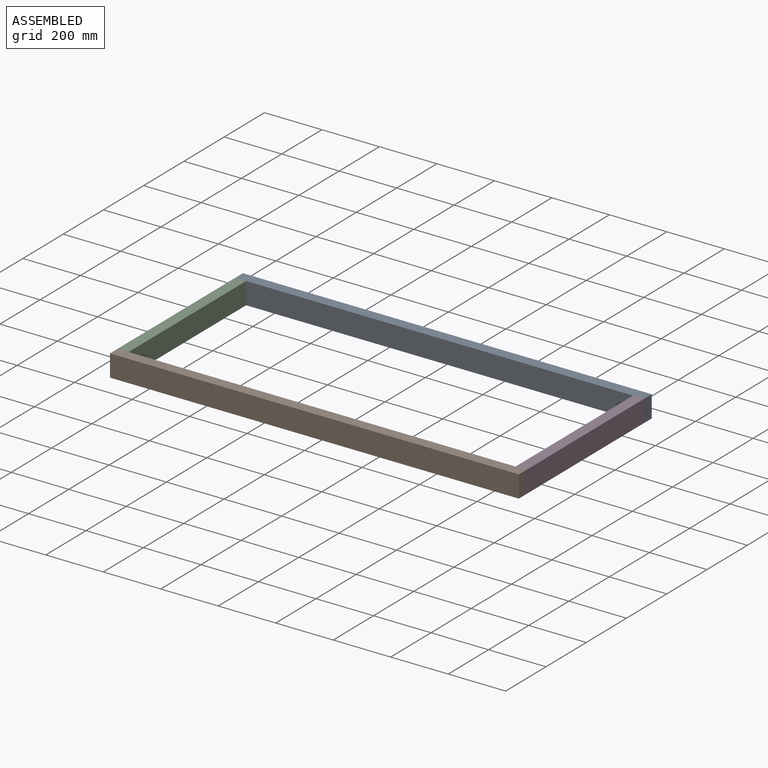
[diagram: assembled view]
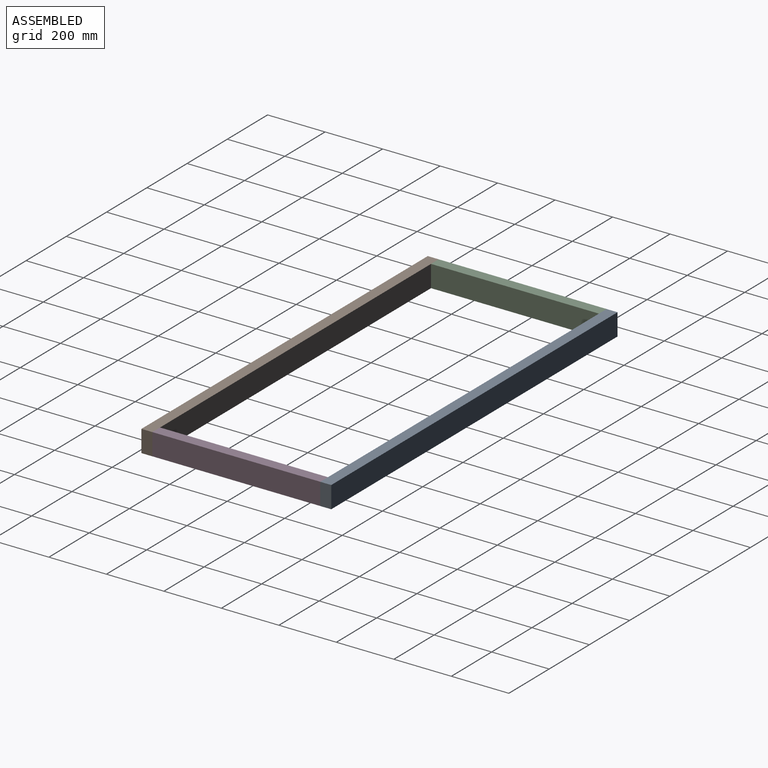
[diagram: assembled view, second angle]
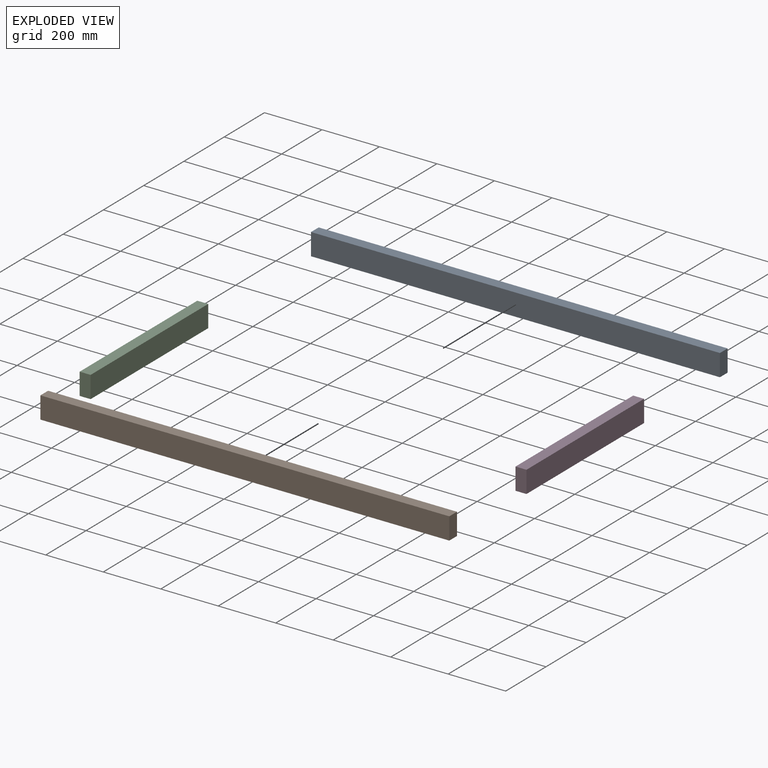
[diagram: exploded view]
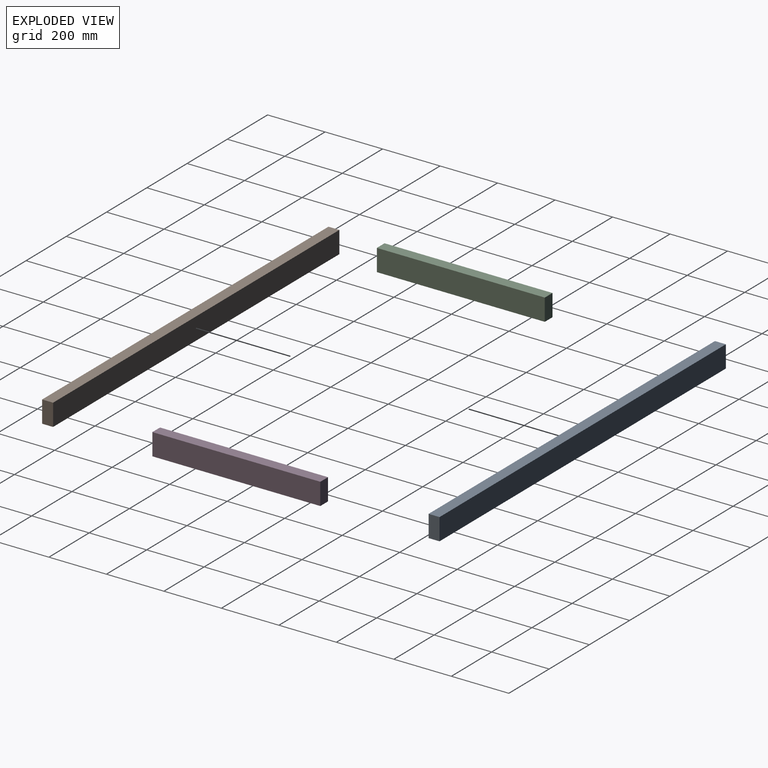
[diagram: exploded view, second angle]
ASSEMBLY  parts=4 mates=4
PART A: 6 faces, bbox 1422.4x38x76.2 mm
  f0: plane 1422.37x76.2mm, normal (0,1,0), area 108384.3mm2, adj f1,f3,f4,f5
  f1: plane 76.2x38.01mm, normal (-1,0,0), area 2896.4mm2, adj f0,f2,f4,f5
  f2: plane 1422.37x76.2mm, normal (0,-1,0), area 108384.3mm2, adj f1,f3,f4,f5
  f3: plane 76.2x38.01mm, normal (1,0,0), area 2896.4mm2, adj f0,f2,f4,f5
  f4: plane 1422.37x38.01mm, normal (0,0,1), area 54065.4mm2, adj f0,f1,f2,f3
  f5: plane 1422.37x38.01mm, normal (0,0,-1), area 54065.4mm2, adj f0,f1,f2,f3
PART B: same geometry as A
PART C: 6 faces, bbox 38x584.2x76.2 mm
  f0: plane 76.2x38.02mm, normal (0,1,0), area 2897.2mm2, adj f1,f3,f4,f5
  f1: plane 584.2x76.2mm, normal (-1,0,0), area 44515.9mm2, adj f0,f2,f4,f5
  f2: plane 76.2x38.02mm, normal (0,-1,0), area 2897.2mm2, adj f1,f3,f4,f5
  f3: plane 584.2x76.2mm, normal (1,0,0), area 44515.9mm2, adj f0,f2,f4,f5
  f4: plane 584.2x38.02mm, normal (0,0,-1), area 22212.2mm2, adj f0,f1,f2,f3
  f5: plane 584.2x38.02mm, normal (0,0,1), area 22212.2mm2, adj f0,f1,f2,f3
PART D: same geometry as C
PLACE A t=(-9.51,242.16,108.72)mm
PLACE B t=(-9.51,-380.05,108.72)mm
PLACE C t=(-405.36,-99.05,184.92)mm
PLACE D t=(978.91,-99.05,184.92)mm
MATE fastened C.f2 <-> B.f0  axis (0,-1,0) through (-687.74,-319.29,146.82)mm
MATE fastened C.f0 <-> A.f2  axis (0,1,0) through (-687.74,264.91,146.82)mm
MATE fastened D.f2 <-> B.f0  axis (0,-1,0) through (696.53,-319.29,146.82)mm
MATE fastened A.f2 <-> D.f0  axis (0,-1,0) through (715.58,264.91,146.82)mm
